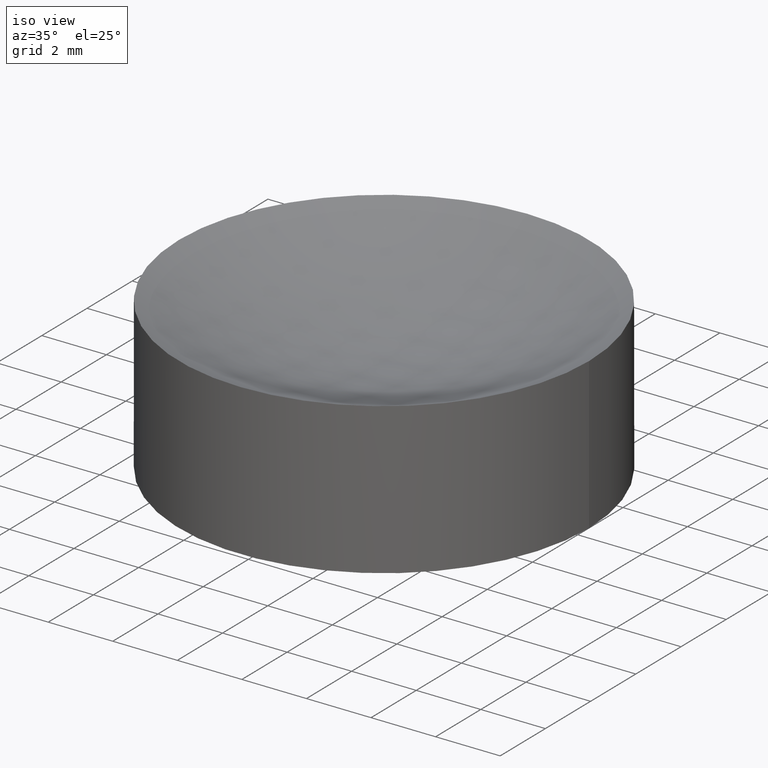
[diagram: clean part render]
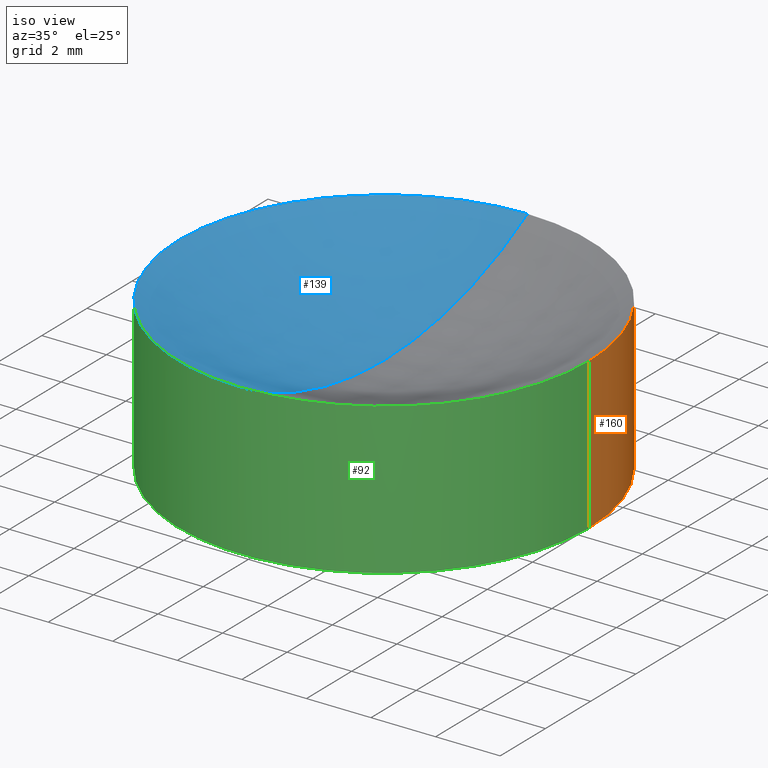
[diagram: same view with three faces highlighted in distinct colors, each labeled with its STEP entity id]
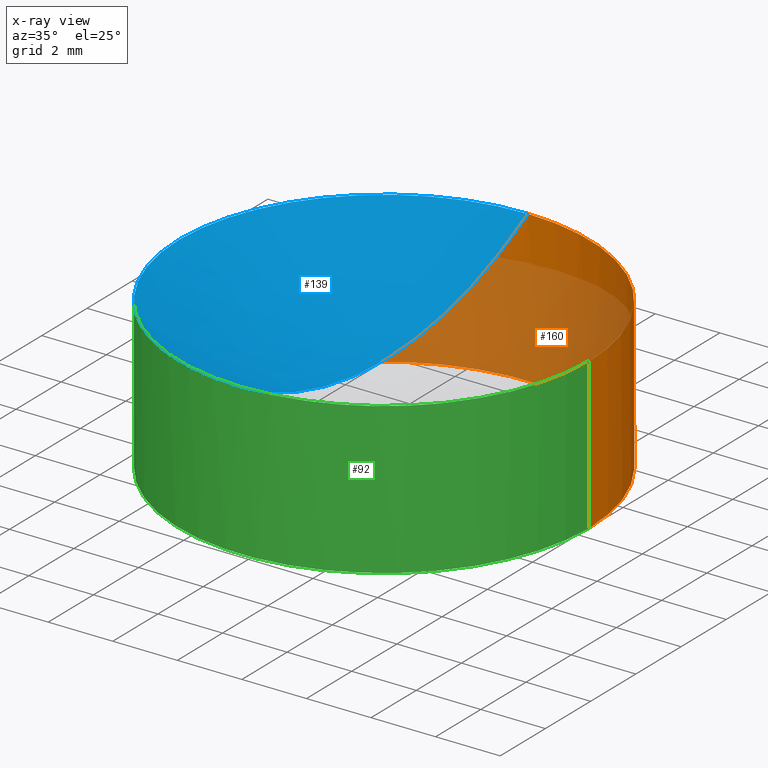
[diagram: x-ray of the same camera — body ghosted, the three highlighted faces saturated]
A machine part, iso view with three faces highlighted in distinct colors.
The next image is the same camera in x-ray (body ghosted, the three faces saturated) — at least one of them is partly hidden behind the body in this view.
Their STEP definitions:

[orange] entity #160 — the highlighted cylindrical surface (partial cylindrical patch) has radius 6.35 mm, axis along (-0, -0, 1).
#17 = ORIENTED_EDGE ( 'NONE', *, *, #29, .T. ) ;
#22 = VERTEX_POINT ( 'NONE', #119 ) ;
#24 = DIRECTION ( 'NONE',  ( 1.000000000000000000, 0.0000000000000000000, 0.0000000000000000000 ) ) ;
#25 = DIRECTION ( 'NONE',  ( -0.0000000000000000000, -0.0000000000000000000, 1.000000000000000000 ) ) ;
#26 = CARTESIAN_POINT ( 'NONE',  ( 0.0000000000000000000, 0.0000000000000000000, -2.338553407212048600 ) ) ;
#27 = AXIS2_PLACEMENT_3D ( 'NONE', #26, #25, #24 ) ;
#29 = EDGE_CURVE ( 'NONE', #49, #163, #118, .T. ) ;
#49 = VERTEX_POINT ( 'NONE', #146 ) ;
#51 = ORIENTED_EDGE ( 'NONE', *, *, #52, .F. ) ;
#52 = EDGE_CURVE ( 'NONE', #96, #156, #115, .T. ) ;
#81 = DIRECTION ( 'NONE',  ( 1.000000000000000000, 0.0000000000000000000, 0.0000000000000000000 ) ) ;
#82 = DIRECTION ( 'NONE',  ( -0.0000000000000000000, -0.0000000000000000000, 1.000000000000000000 ) ) ;
#83 = CARTESIAN_POINT ( 'NONE',  ( 0.0000000000000000000, 0.0000000000000000000, 2.338553407212048600 ) ) ;
#84 = AXIS2_PLACEMENT_3D ( 'NONE', #83, #82, #81 ) ;
#85 = CIRCLE ( 'NONE', #84, 6.349999999999998800 ) ;
#94 = CARTESIAN_POINT ( 'NONE',  ( 0.0000000000000000000, 6.349999999999999600, 2.338553407212049100 ) ) ;
#96 = VERTEX_POINT ( 'NONE', #94 ) ;
#102 = ORIENTED_EDGE ( 'NONE', *, *, #120, .F. ) ;
#111 = DIRECTION ( 'NONE',  ( 1.000000000000000000, 0.0000000000000000000, 0.0000000000000000000 ) ) ;
#112 = DIRECTION ( 'NONE',  ( -0.0000000000000000000, -0.0000000000000000000, 1.000000000000000000 ) ) ;
#113 = CARTESIAN_POINT ( 'NONE',  ( 0.0000000000000000000, 0.0000000000000000000, 2.338553407212048600 ) ) ;
#114 = AXIS2_PLACEMENT_3D ( 'NONE', #113, #112, #111 ) ;
#115 = CIRCLE ( 'NONE', #114, 6.349999999999998800 ) ;
#118 = CIRCLE ( 'NONE', #27, 6.350000000000000500 ) ;
#119 = CARTESIAN_POINT ( 'NONE',  ( 6.349999999999998800, 0.0000000000000000000, 2.338553407212048600 ) ) ;
#120 = EDGE_CURVE ( 'NONE', #22, #96, #85, .T. ) ;
#121 = ORIENTED_EDGE ( 'NONE', *, *, #143, .F. ) ;
#140 = EDGE_LOOP ( 'NONE', ( #17, #162, #51, #102, #121 ) ) ;
#143 = EDGE_CURVE ( 'NONE', #49, #22, #195, .T. ) ;
#146 = CARTESIAN_POINT ( 'NONE',  ( 6.350000000000000500, 0.0000000000000000000, -2.338553407212048600 ) ) ;
#156 = VERTEX_POINT ( 'NONE', #217 ) ;
#160 = ADVANCED_FACE ( 'NONE', ( #216 ), #248, .T. ) ;
#161 = EDGE_CURVE ( 'NONE', #163, #156, #190, .T. ) ;
#162 = ORIENTED_EDGE ( 'NONE', *, *, #161, .T. ) ;
#163 = VERTEX_POINT ( 'NONE', #228 ) ;
#190 = LINE ( 'NONE', #232, #231 ) ;
#191 = DIRECTION ( 'NONE',  ( 1.000000000000000000, 0.0000000000000000000, 0.0000000000000000000 ) ) ;
#192 = DIRECTION ( 'NONE',  ( -0.0000000000000000000, -0.0000000000000000000, 1.000000000000000000 ) ) ;
#193 = CARTESIAN_POINT ( 'NONE',  ( 0.0000000000000000000, 0.0000000000000000000, 8.178599863217275600 ) ) ;
#194 = AXIS2_PLACEMENT_3D ( 'NONE', #193, #192, #191 ) ;
#195 = LINE ( 'NONE', #239, #238 ) ;
#216 = FACE_OUTER_BOUND ( 'NONE', #140, .T. ) ;
#217 = CARTESIAN_POINT ( 'NONE',  ( -6.349999999999998800, 7.776250346772094400E-016, 2.338553407212048600 ) ) ;
#228 = CARTESIAN_POINT ( 'NONE',  ( -6.350000000000001400, 7.776250346772097400E-016, -2.338553407212048600 ) ) ;
#230 = DIRECTION ( 'NONE',  ( -0.0000000000000000000, -0.0000000000000000000, 1.000000000000000000 ) ) ;
#231 = VECTOR ( 'NONE', #230, 1000.000000000000000 ) ;
#232 = CARTESIAN_POINT ( 'NONE',  ( -6.349999999999999600, 7.776250346772095400E-016, 8.178599863217275600 ) ) ;
#237 = DIRECTION ( 'NONE',  ( -0.0000000000000000000, -0.0000000000000000000, 1.000000000000000000 ) ) ;
#238 = VECTOR ( 'NONE', #237, 1000.000000000000000 ) ;
#239 = CARTESIAN_POINT ( 'NONE',  ( 6.349999999999999600, 0.0000000000000000000, 8.178599863217275600 ) ) ;
#248 = CYLINDRICAL_SURFACE ( 'NONE', #194, 6.349999999999999600 ) ;

[blue] entity #139 — the highlighted spherical surface has radius 12.86 mm.
#10 = DIRECTION ( 'NONE',  ( 1.000000000000000000, 0.0000000000000000000, 0.0000000000000000000 ) ) ;
#11 = DIRECTION ( 'NONE',  ( -0.0000000000000000000, -0.0000000000000000000, 1.000000000000000000 ) ) ;
#12 = CARTESIAN_POINT ( 'NONE',  ( 0.0000000000000000000, 0.0000000000000000000, 2.338553407212048600 ) ) ;
#13 = AXIS2_PLACEMENT_3D ( 'NONE', #12, #11, #10 ) ;
#20 = EDGE_CURVE ( 'NONE', #39, #96, #141, .T. ) ;
#23 = ORIENTED_EDGE ( 'NONE', *, *, #105, .T. ) ;
#28 = CARTESIAN_POINT ( 'NONE',  ( 0.0000000000000000000, 7.874218855077883200E-016, 0.6614465927879519300 ) ) ;
#32 = DIRECTION ( 'NONE',  ( 0.0000000000000000000, 0.0000000000000000000, -1.000000000000000000 ) ) ;
#33 = DIRECTION ( 'NONE',  ( 1.000000000000000000, 0.0000000000000000000, 0.0000000000000000000 ) ) ;
#34 = CARTESIAN_POINT ( 'NONE',  ( 0.0000000000000000000, 0.0000000000000000000, 13.52144659278794800 ) ) ;
#35 = AXIS2_PLACEMENT_3D ( 'NONE', #34, #33, #32 ) ;
#39 = VERTEX_POINT ( 'NONE', #28 ) ;
#50 = ORIENTED_EDGE ( 'NONE', *, *, #52, .T. ) ;
#52 = EDGE_CURVE ( 'NONE', #96, #156, #115, .T. ) ;
#74 = FACE_OUTER_BOUND ( 'NONE', #98, .T. ) ;
#94 = CARTESIAN_POINT ( 'NONE',  ( 0.0000000000000000000, 6.349999999999999600, 2.338553407212049100 ) ) ;
#96 = VERTEX_POINT ( 'NONE', #94 ) ;
#98 = EDGE_LOOP ( 'NONE', ( #103, #104, #50, #23 ) ) ;
#100 = EDGE_CURVE ( 'NONE', #39, #154, #124, .T. ) ;
#103 = ORIENTED_EDGE ( 'NONE', *, *, #100, .F. ) ;
#104 = ORIENTED_EDGE ( 'NONE', *, *, #20, .T. ) ;
#105 = EDGE_CURVE ( 'NONE', #156, #154, #148, .T. ) ;
#111 = DIRECTION ( 'NONE',  ( 1.000000000000000000, 0.0000000000000000000, 0.0000000000000000000 ) ) ;
#112 = DIRECTION ( 'NONE',  ( -0.0000000000000000000, -0.0000000000000000000, 1.000000000000000000 ) ) ;
#113 = CARTESIAN_POINT ( 'NONE',  ( 0.0000000000000000000, 0.0000000000000000000, 2.338553407212048600 ) ) ;
#114 = AXIS2_PLACEMENT_3D ( 'NONE', #113, #112, #111 ) ;
#115 = CIRCLE ( 'NONE', #114, 6.349999999999998800 ) ;
#124 = CIRCLE ( 'NONE', #153, 12.85999999999999600 ) ;
#139 = ADVANCED_FACE ( 'NONE', ( #74 ), #169, .F. ) ;
#141 = CIRCLE ( 'NONE', #35, 12.85999999999999600 ) ;
#148 = CIRCLE ( 'NONE', #13, 6.349999999999998800 ) ;
#150 = DIRECTION ( 'NONE',  ( -1.224606353822377300E-016, -1.000000000000000000, 0.0000000000000000000 ) ) ;
#151 = DIRECTION ( 'NONE',  ( -1.000000000000000000, 1.224606353822377300E-016, 0.0000000000000000000 ) ) ;
#152 = CARTESIAN_POINT ( 'NONE',  ( 0.0000000000000000000, 0.0000000000000000000, 13.52144659278794800 ) ) ;
#153 = AXIS2_PLACEMENT_3D ( 'NONE', #152, #151, #150 ) ;
#154 = VERTEX_POINT ( 'NONE', #227 ) ;
#156 = VERTEX_POINT ( 'NONE', #217 ) ;
#164 = DIRECTION ( 'NONE',  ( 0.0000000000000000000, 1.000000000000000000, 0.0000000000000000000 ) ) ;
#169 = SPHERICAL_SURFACE ( 'NONE', #221, 12.85999999999999600 ) ;
#177 = DIRECTION ( 'NONE',  ( -1.000000000000000000, 0.0000000000000000000, 0.0000000000000000000 ) ) ;
#183 = CARTESIAN_POINT ( 'NONE',  ( 0.0000000000000000000, 0.0000000000000000000, 13.52144659278794800 ) ) ;
#217 = CARTESIAN_POINT ( 'NONE',  ( -6.349999999999998800, 7.776250346772094400E-016, 2.338553407212048600 ) ) ;
#221 = AXIS2_PLACEMENT_3D ( 'NONE', #183, #177, #164 ) ;
#227 = CARTESIAN_POINT ( 'NONE',  ( -7.776250346772096400E-016, -6.349999999999999600, 2.338553407212049100 ) ) ;

[green] entity #92 — the highlighted cylindrical surface (partial cylindrical patch) has radius 6.35 mm, axis along (-0, -0, 1).
#10 = DIRECTION ( 'NONE',  ( 1.000000000000000000, 0.0000000000000000000, 0.0000000000000000000 ) ) ;
#11 = DIRECTION ( 'NONE',  ( -0.0000000000000000000, -0.0000000000000000000, 1.000000000000000000 ) ) ;
#12 = CARTESIAN_POINT ( 'NONE',  ( 0.0000000000000000000, 0.0000000000000000000, 2.338553407212048600 ) ) ;
#13 = AXIS2_PLACEMENT_3D ( 'NONE', #12, #11, #10 ) ;
#14 = DIRECTION ( 'NONE',  ( 1.000000000000000000, 0.0000000000000000000, 0.0000000000000000000 ) ) ;
#15 = DIRECTION ( 'NONE',  ( -0.0000000000000000000, -0.0000000000000000000, 1.000000000000000000 ) ) ;
#16 = CARTESIAN_POINT ( 'NONE',  ( 0.0000000000000000000, 0.0000000000000000000, 8.178599863217275600 ) ) ;
#22 = VERTEX_POINT ( 'NONE', #119 ) ;
#49 = VERTEX_POINT ( 'NONE', #146 ) ;
#53 = ORIENTED_EDGE ( 'NONE', *, *, #143, .T. ) ;
#54 = ORIENTED_EDGE ( 'NONE', *, *, #105, .F. ) ;
#75 = DIRECTION ( 'NONE',  ( 1.000000000000000000, 0.0000000000000000000, 0.0000000000000000000 ) ) ;
#76 = DIRECTION ( 'NONE',  ( -0.0000000000000000000, -0.0000000000000000000, 1.000000000000000000 ) ) ;
#77 = CARTESIAN_POINT ( 'NONE',  ( 0.0000000000000000000, 0.0000000000000000000, 2.338553407212048600 ) ) ;
#78 = AXIS2_PLACEMENT_3D ( 'NONE', #77, #76, #75 ) ;
#79 = CIRCLE ( 'NONE', #78, 6.349999999999998800 ) ;
#92 = ADVANCED_FACE ( 'NONE', ( #145 ), #93, .T. ) ;
#93 = CYLINDRICAL_SURFACE ( 'NONE', #95, 6.349999999999999600 ) ;
#95 = AXIS2_PLACEMENT_3D ( 'NONE', #16, #15, #14 ) ;
#97 = EDGE_CURVE ( 'NONE', #163, #49, #129, .T. ) ;
#105 = EDGE_CURVE ( 'NONE', #156, #154, #148, .T. ) ;
#108 = ORIENTED_EDGE ( 'NONE', *, *, #97, .T. ) ;
#119 = CARTESIAN_POINT ( 'NONE',  ( 6.349999999999998800, 0.0000000000000000000, 2.338553407212048600 ) ) ;
#122 = EDGE_CURVE ( 'NONE', #154, #22, #79, .T. ) ;
#125 = DIRECTION ( 'NONE',  ( 1.000000000000000000, 0.0000000000000000000, 0.0000000000000000000 ) ) ;
#126 = DIRECTION ( 'NONE',  ( -0.0000000000000000000, -0.0000000000000000000, 1.000000000000000000 ) ) ;
#127 = CARTESIAN_POINT ( 'NONE',  ( 0.0000000000000000000, 0.0000000000000000000, -2.338553407212048600 ) ) ;
#128 = AXIS2_PLACEMENT_3D ( 'NONE', #127, #126, #125 ) ;
#129 = CIRCLE ( 'NONE', #128, 6.350000000000000500 ) ;
#134 = EDGE_LOOP ( 'NONE', ( #135, #108, #53, #142, #54 ) ) ;
#135 = ORIENTED_EDGE ( 'NONE', *, *, #161, .F. ) ;
#142 = ORIENTED_EDGE ( 'NONE', *, *, #122, .F. ) ;
#143 = EDGE_CURVE ( 'NONE', #49, #22, #195, .T. ) ;
#145 = FACE_OUTER_BOUND ( 'NONE', #134, .T. ) ;
#146 = CARTESIAN_POINT ( 'NONE',  ( 6.350000000000000500, 0.0000000000000000000, -2.338553407212048600 ) ) ;
#148 = CIRCLE ( 'NONE', #13, 6.349999999999998800 ) ;
#154 = VERTEX_POINT ( 'NONE', #227 ) ;
#156 = VERTEX_POINT ( 'NONE', #217 ) ;
#161 = EDGE_CURVE ( 'NONE', #163, #156, #190, .T. ) ;
#163 = VERTEX_POINT ( 'NONE', #228 ) ;
#190 = LINE ( 'NONE', #232, #231 ) ;
#195 = LINE ( 'NONE', #239, #238 ) ;
#217 = CARTESIAN_POINT ( 'NONE',  ( -6.349999999999998800, 7.776250346772094400E-016, 2.338553407212048600 ) ) ;
#227 = CARTESIAN_POINT ( 'NONE',  ( -7.776250346772096400E-016, -6.349999999999999600, 2.338553407212049100 ) ) ;
#228 = CARTESIAN_POINT ( 'NONE',  ( -6.350000000000001400, 7.776250346772097400E-016, -2.338553407212048600 ) ) ;
#230 = DIRECTION ( 'NONE',  ( -0.0000000000000000000, -0.0000000000000000000, 1.000000000000000000 ) ) ;
#231 = VECTOR ( 'NONE', #230, 1000.000000000000000 ) ;
#232 = CARTESIAN_POINT ( 'NONE',  ( -6.349999999999999600, 7.776250346772095400E-016, 8.178599863217275600 ) ) ;
#237 = DIRECTION ( 'NONE',  ( -0.0000000000000000000, -0.0000000000000000000, 1.000000000000000000 ) ) ;
#238 = VECTOR ( 'NONE', #237, 1000.000000000000000 ) ;
#239 = CARTESIAN_POINT ( 'NONE',  ( 6.349999999999999600, 0.0000000000000000000, 8.178599863217275600 ) ) ;